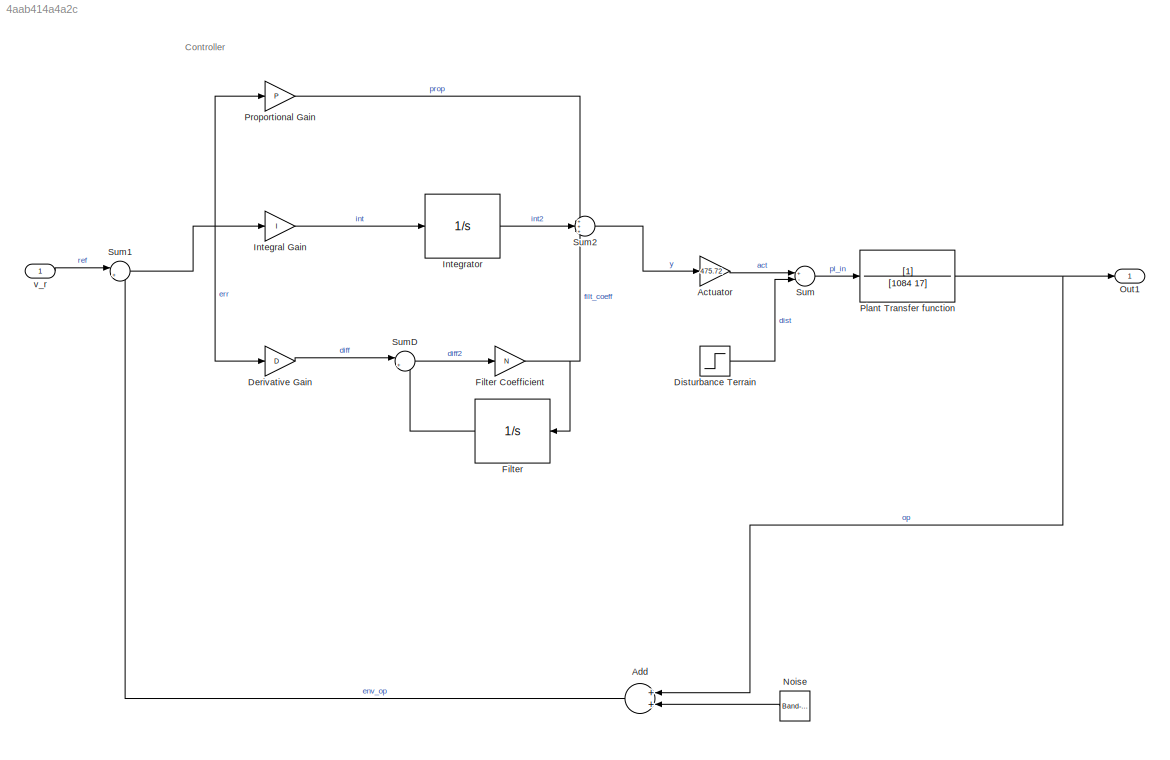
MODEL slx_4aab414a4a2c
KIND model
CONFIG AbsTol = auto
CONFIG EnableMultiTasking = off
CONFIG FixedStep = auto
CONFIG MaxStep = auto
CONFIG MinStep = auto
CONFIG RelTol = 1e-3
CONFIG SampleTimeConstraint = Unconstrained
CONFIG Solver = VariableStepAuto
CONFIG SolverName = VariableStepAuto
CONFIG StartTime = 0.0
CONFIG StopTime = 700
WORKSPACE source: external: MAT-File  (data not in archive)
BLOCK [Reference]  Noise  REF=simulink/Sources/Band-Limited
White Noise
  Ports = [0, 1]
  SourceBlock = simulink/Sources/Band-Limited\nWhite Noise
  SourceProductBaseCode = SL
  SourceProductName = Simulink
  SourceType = Band-Limited White Noise.
BLOCK [Gain] Actuator
  Gain = 475.72
  OutDataTypeStr = Inherit: Inherit via internal rule
  ParamDataTypeStr = Inherit: Inherit via internal rule
  SaturateOnIntegerOverflow = off
BLOCK [Sum] Add
  InputSameDT = off
  OutDataTypeStr = Inherit: Inherit via internal rule
  Ports = [2, 1]
  SaturateOnIntegerOverflow = off
BLOCK [Gain] Derivative Gain
  DisableCoverage = on
  Gain = D
  OutDataTypeStr = Inherit: Inherit via internal rule
  OutMax = DOutMax
  OutMin = DOutMin
  ParamDataTypeStr = Inherit: Inherit via internal rule
  ParamMax = DParamMax
  ParamMin = DParamMin
  SampleTime = SampleTime
  SaturateOnIntegerOverflow = off
BLOCK [Step] Disturbance Terrain
  After = 475.72*9.81*sin(pi/45)
  SampleTime = 0
  Time = 350
BLOCK [Integrator] Filter
  DisableCoverage = on
  InitialCondition = InitialConditionForFilter
  Ports = [1, 1]
BLOCK [Gain] Filter Coefficient
  Gain = N
  OutDataTypeStr = Inherit: Inherit via internal rule
  OutMax = NOutMax
  OutMin = NOutMin
  ParamDataTypeStr = Inherit: Inherit via internal rule
  ParamMax = NParamMax
  ParamMin = NParamMin
  SampleTime = SampleTime
  SaturateOnIntegerOverflow = off
BLOCK [Gain] Integral Gain
  DisableCoverage = on
  Gain = I
  OutDataTypeStr = Inherit: Inherit via internal rule
  OutMax = IOutMax
  OutMin = IOutMin
  ParamDataTypeStr = Inherit: Inherit via internal rule
  ParamMax = IParamMax
  ParamMin = IParamMin
  SampleTime = SampleTime
  SaturateOnIntegerOverflow = off
BLOCK [Integrator] Integrator
  InitialCondition = InitialConditionForIntegrator
  Ports = [1, 1]
BLOCK [Outport] Out1
  IconDisplay = Port number
BLOCK [TransferFcn] Plant Transfer function
  Denominator = [1084 17]
BLOCK [Gain] Proportional Gain
  Gain = P
  OutDataTypeStr = Inherit: Inherit via internal rule
  OutMax = POutMax
  OutMin = POutMin
  ParamDataTypeStr = Inherit: Inherit via internal rule
  ParamMax = PParamMax
  ParamMin = PParamMin
  SampleTime = SampleTime
  SaturateOnIntegerOverflow = off
BLOCK [Sum] Sum
  InputSameDT = off
  Inputs = +-
  OutDataTypeStr = Inherit: Inherit via internal rule
  Ports = [2, 1]
  SaturateOnIntegerOverflow = off
BLOCK [Sum] Sum1
  IconShape = round
  InputSameDT = off
  Inputs = |+-
  OutDataTypeStr = Inherit: Inherit via internal rule
  Ports = [2, 1]
  SaturateOnIntegerOverflow = off
BLOCK [Sum] Sum2
  IconShape = round
  InputSameDT = off
  Inputs = +++
  OutDataTypeStr = Inherit: Inherit via internal rule
  OutMax = SumOutMax
  OutMin = SumOutMin
  Ports = [3, 1]
  SampleTime = SampleTime
  SaturateOnIntegerOverflow = off
BLOCK [Sum] SumD
  DisableCoverage = on
  IconShape = round
  InputSameDT = off
  Inputs = |+-
  OutDataTypeStr = Inherit: Inherit via internal rule
  OutMax = SumDOutMax
  OutMin = SumDOutMin
  Ports = [2, 1]
  SampleTime = SampleTime
  SaturateOnIntegerOverflow = off
BLOCK [Inport] v_r
  IconDisplay = Port number
ANNOTATION (root): Controller
LINE  Noise:1 -> Add:2
LINE Actuator:1 -> Sum:1
LINE Add:1 -> Sum1:2
LINE Derivative Gain:1 -> SumD:1
LINE Disturbance Terrain:1 -> Sum:2
NET Filter Coefficient:1 -> Filter:1, Sum2:3
LINE Filter:1 -> SumD:2
LINE Integral Gain:1 -> Integrator:1
LINE Integrator:1 -> Sum2:2
NET Plant Transfer function:1 -> Add:1, Out1:1
LINE Proportional Gain:1 -> Sum2:1
NET Sum1:1 -> Derivative Gain:1, Integral Gain:1, Proportional Gain:1
LINE Sum2:1 -> Actuator:1
LINE Sum:1 -> Plant Transfer function:1
LINE SumD:1 -> Filter Coefficient:1
LINE v_r:1 -> Sum1:1
note: NET lines group one-source signal fan-out (src -> all destinations, sorted); 1:1 wires keep LINE
